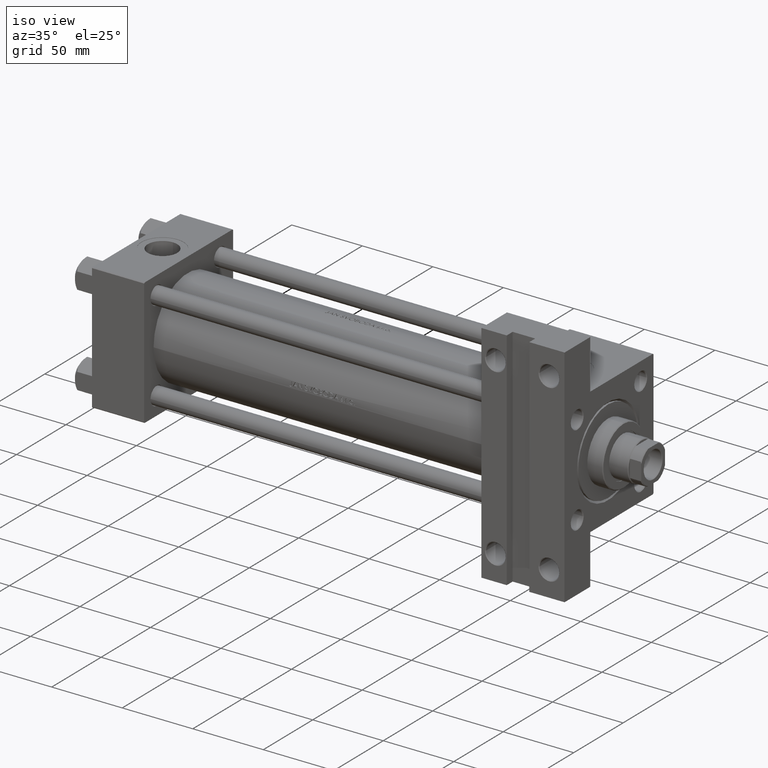
[diagram: clean part render]
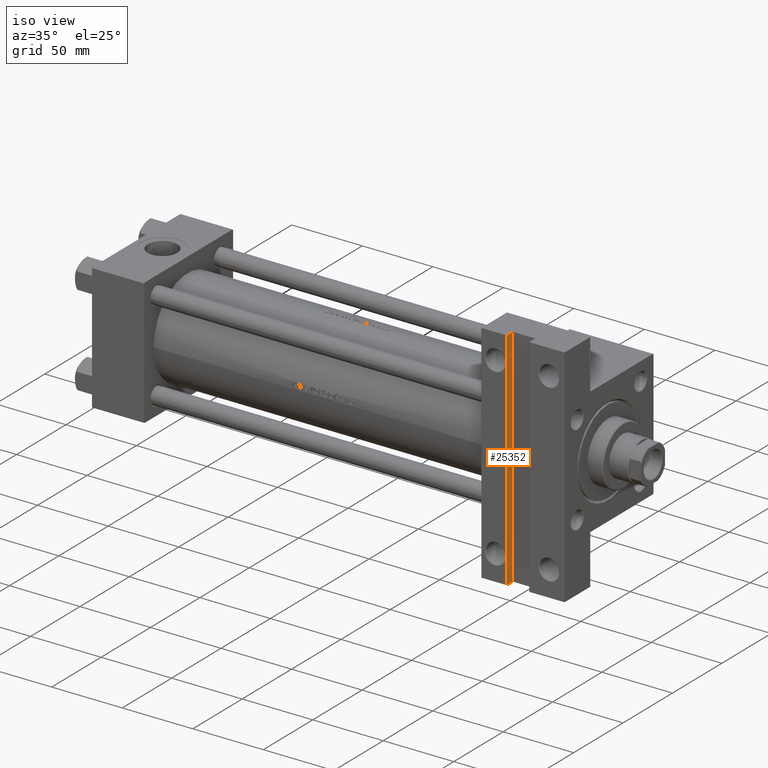
[diagram: same view with one face highlighted and labeled with its STEP entity id]
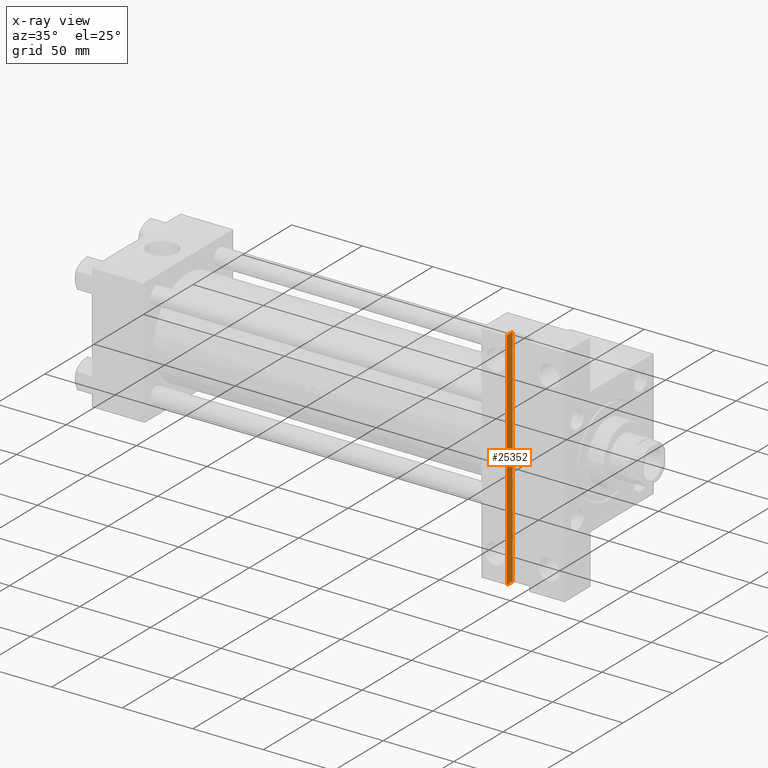
[diagram: x-ray of the same camera — body ghosted, the highlighted face saturated]
A machine part, iso view. The second image highlights one B-rep face of the part: STEP entity #25352.
The next image is the same camera in x-ray: the body ghosted, the highlighted face saturated — about 0% of this face is hidden behind the body in this view.
In plain terms, the highlighted planar face has unit normal (-1, 0, 0).
Its self-contained STEP definition (entity closure, byte-faithful):
#895 = DIRECTION ( 'NONE',  ( 0.000000000000000000, 1.000000000000000000, 0.000000000000000000 ) ) ;
#1800 = CARTESIAN_POINT ( 'NONE',  ( 293.9999999999999432, -79.99999999999995737, -45.00000000000000000 ) ) ;
#3439 = VERTEX_POINT ( 'NONE', #1800 ) ;
#4150 = CARTESIAN_POINT ( 'NONE',  ( 293.9999999999999432, -79.99999999999995737, -39.00000000000000000 ) ) ;
#5628 = VERTEX_POINT ( 'NONE', #28236 ) ;
#5814 = EDGE_CURVE ( 'NONE', #49218, #3439, #18177, .T. ) ;
#10113 = CARTESIAN_POINT ( 'NONE',  ( 293.9999999999999432, 79.99999999999995737, -39.00000000000000000 ) ) ;
#10342 = EDGE_CURVE ( 'NONE', #3439, #5628, #39857, .T. ) ;
#12859 = CARTESIAN_POINT ( 'NONE',  ( 293.9999999999999432, 79.99999999999995737, -39.00000000000000000 ) ) ;
#15720 = DIRECTION ( 'NONE',  ( -1.000000000000000000, 0.000000000000000000, 0.000000000000000000 ) ) ;
#16792 = VECTOR ( 'NONE', #20148, 1000.000000000000000 ) ;
#16821 = VECTOR ( 'NONE', #49114, 1000.000000000000000 ) ;
#18177 = LINE ( 'NONE', #33255, #16821 ) ;
#18257 = DIRECTION ( 'NONE',  ( 0.000000000000000000, 1.000000000000000000, 0.000000000000000000 ) ) ;
#19771 = AXIS2_PLACEMENT_3D ( 'NONE', #4150, #15720, #31045 ) ;
#19978 = CARTESIAN_POINT ( 'NONE',  ( 293.9999999999999432, -79.99999999999995737, -39.00000000000000000 ) ) ;
#20148 = DIRECTION ( 'NONE',  ( -0.000000000000000000, -0.000000000000000000, -1.000000000000000000 ) ) ;
#20726 = CARTESIAN_POINT ( 'NONE',  ( 293.9999999999999432, -79.99999999999995737, -45.00000000000000000 ) ) ;
#23767 = VECTOR ( 'NONE', #18257, 1000.000000000000000 ) ;
#25352 = ADVANCED_FACE ( 'NONE', ( #37877 ), #38617, .F. ) ;
#26155 = EDGE_CURVE ( 'NONE', #49218, #43881, #49443, .T. ) ;
#26254 = ORIENTED_EDGE ( 'NONE', *, *, #10342, .T. ) ;
#26583 = EDGE_LOOP ( 'NONE', ( #26254, #37628, #31526, #41419 ) ) ;
#28236 = CARTESIAN_POINT ( 'NONE',  ( 293.9999999999999432, 79.99999999999995737, -45.00000000000000000 ) ) ;
#31045 = DIRECTION ( 'NONE',  ( 0.000000000000000000, 0.000000000000000000, 1.000000000000000000 ) ) ;
#31526 = ORIENTED_EDGE ( 'NONE', *, *, #26155, .F. ) ;
#31943 = LINE ( 'NONE', #12859, #16792 ) ;
#33255 = CARTESIAN_POINT ( 'NONE',  ( 293.9999999999999432, -79.99999999999995737, -39.00000000000000000 ) ) ;
#34755 = VECTOR ( 'NONE', #895, 1000.000000000000000 ) ;
#37628 = ORIENTED_EDGE ( 'NONE', *, *, #39405, .F. ) ;
#37877 = FACE_OUTER_BOUND ( 'NONE', #26583, .T. ) ;
#37882 = CARTESIAN_POINT ( 'NONE',  ( 293.9999999999999432, -79.99999999999995737, -39.00000000000000000 ) ) ;
#38617 = PLANE ( 'NONE',  #19771 ) ;
#39405 = EDGE_CURVE ( 'NONE', #43881, #5628, #31943, .T. ) ;
#39857 = LINE ( 'NONE', #20726, #34755 ) ;
#41419 = ORIENTED_EDGE ( 'NONE', *, *, #5814, .T. ) ;
#43881 = VERTEX_POINT ( 'NONE', #10113 ) ;
#49114 = DIRECTION ( 'NONE',  ( -0.000000000000000000, -0.000000000000000000, -1.000000000000000000 ) ) ;
#49218 = VERTEX_POINT ( 'NONE', #19978 ) ;
#49443 = LINE ( 'NONE', #37882, #23767 ) ;